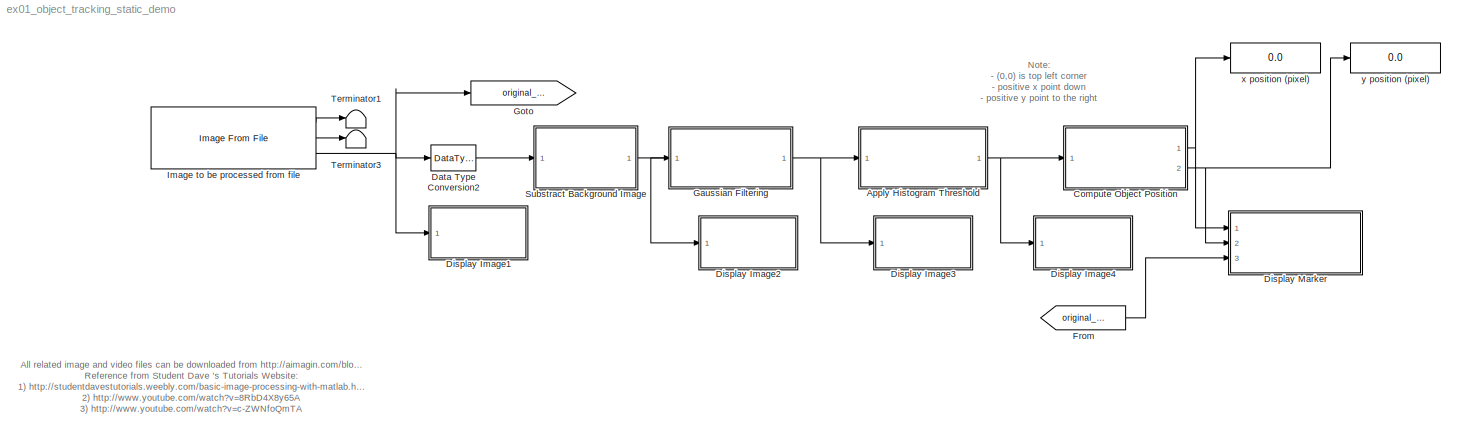
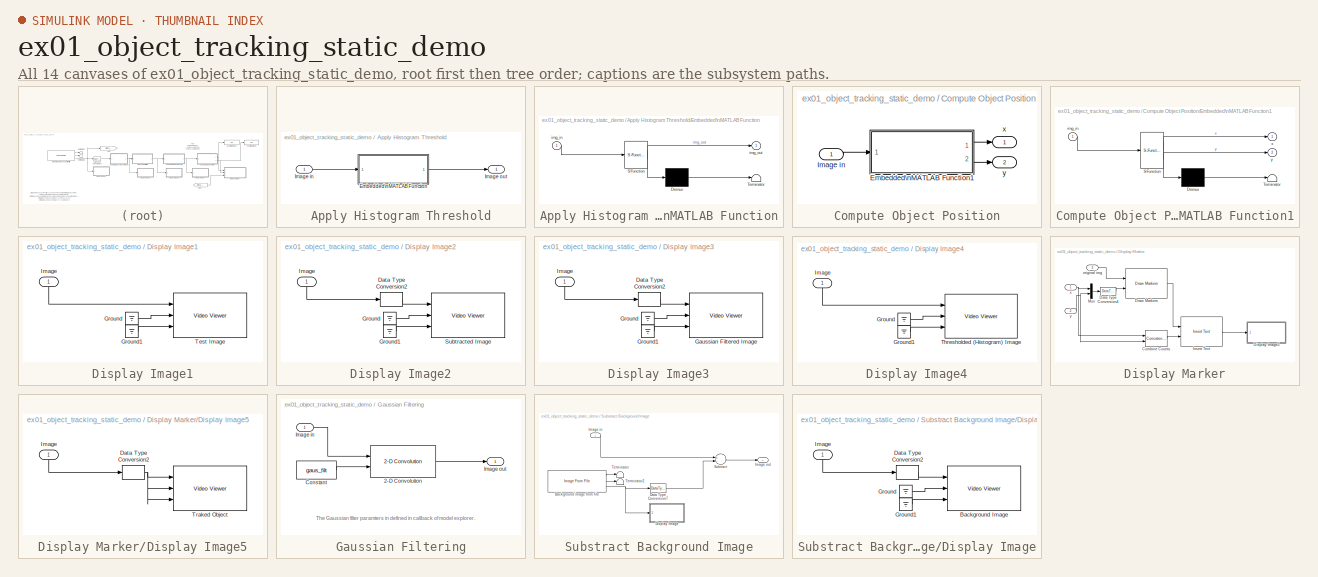
[diagram: thumbnail index - all 14 canvases of the model, root first then tree order]
MODEL ex01_object_tracking_static_demo
KIND model
CONFIG InitFcn = hsize = 20;\nsigma = 10;\ngaus_filt = fspecial('gaussian',hsize , sigma);\n
BLOCK [SubSystem] Apply Histogram Threshold
  FunctionWithSeparateData = off
  MaskHideContents = off
  MinAlgLoopOccurrences = off
  Opaque = off
  Ports = [1, 1]
  PropExecContextOutsideSubsystem = off
  RTWSystemCode = Auto
  RequestExecContextInheritance = off
BLOCK [SubSystem] Apply Histogram Threshold/Embedded\nMATLAB Function
  FunctionWithSeparateData = off
  MaskDescription = Embedded MATLAB block
  MaskDisplay = disp('fcn');
  MaskHideContents = off
  MaskIconFrame = on
  MaskIconOpaque = off
  MaskIconRotate = none
  MaskIconUnits = autoscale
  MaskPortRotate = default
  MaskSelfModifiable = on
  MaskType = Stateflow
  MinAlgLoopOccurrences = off
  Opaque = off
  PermitHierarchicalResolution = ExplicitOnly
  Ports = [1, 1]
  PropExecContextOutsideSubsystem = off
  RTWSystemCode = Auto
  RequestExecContextInheritance = off
BLOCK [Demux] Apply Histogram Threshold/Embedded\nMATLAB Function/ Demux 
  Outputs = 1
  Ports = [1, 1]
BLOCK [S-Function] Apply Histogram Threshold/Embedded\nMATLAB Function/ SFunction 
  EnableBusSupport = on
  FunctionName = sf_sfun
  PortCounts = [1 2]
  Ports = [1, 2]
  Tag = Stateflow S-Function ex01_object_tracking_static_demo 2
BLOCK [Terminator] Apply Histogram Threshold/Embedded\nMATLAB Function/ Terminator 
BLOCK [Inport] Apply Histogram Threshold/Embedded\nMATLAB Function/img_in
  IconDisplay = Port number
  OutDataType = sfix(16)
  OutScaling = 2^0
BLOCK [Outport] Apply Histogram Threshold/Embedded\nMATLAB Function/img_out
  IconDisplay = Port number
  OutDataType = sfix(16)
  OutScaling = 2^0
BLOCK [Inport] Apply Histogram Threshold/Image in
  IconDisplay = Port number
BLOCK [Outport] Apply Histogram Threshold/Image out
  IconDisplay = Port number
BLOCK [SubSystem] Compute Object Position
  FunctionWithSeparateData = off
  MaskHideContents = off
  MinAlgLoopOccurrences = off
  Opaque = off
  Ports = [1, 2]
  PropExecContextOutsideSubsystem = off
  RTWSystemCode = Auto
  RequestExecContextInheritance = off
BLOCK [SubSystem] Compute Object Position/Embedded\nMATLAB Function1
  FunctionWithSeparateData = off
  MaskDescription = Embedded MATLAB block
  MaskDisplay = disp('fcn');
  MaskHideContents = off
  MaskIconFrame = on
  MaskIconOpaque = off
  MaskIconRotate = none
  MaskIconUnits = autoscale
  MaskPortRotate = default
  MaskSelfModifiable = on
  MaskType = Stateflow
  MinAlgLoopOccurrences = off
  Opaque = off
  PermitHierarchicalResolution = ExplicitOnly
  Ports = [1, 2]
  PropExecContextOutsideSubsystem = off
  RTWSystemCode = Auto
  RequestExecContextInheritance = off
BLOCK [Demux] Compute Object Position/Embedded\nMATLAB Function1/ Demux 
  Outputs = 1
  Ports = [1, 1]
BLOCK [S-Function] Compute Object Position/Embedded\nMATLAB Function1/ SFunction 
  EnableBusSupport = on
  FunctionName = sf_sfun
  PortCounts = [1 3]
  Ports = [1, 3]
  Tag = Stateflow S-Function ex01_object_tracking_static_demo 1
BLOCK [Terminator] Compute Object Position/Embedded\nMATLAB Function1/ Terminator 
BLOCK [Inport] Compute Object Position/Embedded\nMATLAB Function1/img_in
  IconDisplay = Port number
  OutDataType = sfix(16)
  OutScaling = 2^0
BLOCK [Outport] Compute Object Position/Embedded\nMATLAB Function1/x
  IconDisplay = Port number
  OutDataType = sfix(16)
  OutScaling = 2^0
BLOCK [Outport] Compute Object Position/Embedded\nMATLAB Function1/y
  IconDisplay = Port number
  Port = 2
BLOCK [Inport] Compute Object Position/Image in
  IconDisplay = Port number
BLOCK [Outport] Compute Object Position/x
  IconDisplay = Port number
BLOCK [Outport] Compute Object Position/y
  IconDisplay = Port number
  Port = 2
BLOCK [DataTypeConversion] Data Type Conversion2
  OutDataType = fixdt(1, 16)
  OutScaling = 2^0
  RndMeth = Floor
  SaturateOnIntegerOverflow = off
BLOCK [SubSystem] Display Image1
  FunctionWithSeparateData = off
  MaskHideContents = off
  MinAlgLoopOccurrences = off
  Opaque = off
  Ports = [1]
  PropExecContextOutsideSubsystem = off
  RTWSystemCode = Auto
  RequestExecContextInheritance = off
BLOCK [Ground] Display Image1/Ground
BLOCK [Ground] Display Image1/Ground1
BLOCK [Inport] Display Image1/Image
  IconDisplay = Port number
BLOCK [Reference] Display Image1/Test Image  REF=vipsnks/Video Viewer
  AxisZoom = on
  DialogControllerArgs = DataTag1
  FigPos = [1056 516 410 398]
  OpenAtMdlStart = on
  Ports = [3]
  SourceBlock = vipsnks/Video Viewer
  SourceType = Video Viewer
  UserData = DataTag0
  UserDataPersistent = on
  colormapValue = gray(256)
  imagePorts = Separate color signals
  inputType = Obsolete7b
  maxInputVal = 255
  minInputVal = 0
  specRange = off
  trueSizedOnce = off
  useColorMap = off
BLOCK [SubSystem] Display Image2
  FunctionWithSeparateData = off
  MaskHideContents = off
  MinAlgLoopOccurrences = off
  Opaque = off
  Ports = [1]
  PropExecContextOutsideSubsystem = off
  RTWSystemCode = Auto
  RequestExecContextInheritance = off
BLOCK [DataTypeConversion] Display Image2/Data Type Conversion2
  OutDataType = fixdt(1, 16)
  OutDataTypeMode = uint8
  OutDataTypeStr = uint8
  OutScaling = 2^0
  RndMeth = Floor
  SaturateOnIntegerOverflow = off
BLOCK [Ground] Display Image2/Ground
BLOCK [Ground] Display Image2/Ground1
BLOCK [Inport] Display Image2/Image
  IconDisplay = Port number
BLOCK [Reference] Display Image2/Subtracted Image  REF=vipsnks/Video Viewer
  AxisZoom = on
  DialogControllerArgs = DataTag3
  FigPos = [618 1033 410 398]
  OpenAtMdlStart = on
  Ports = [3]
  SourceBlock = vipsnks/Video Viewer
  SourceType = Video Viewer
  UserData = DataTag2
  UserDataPersistent = on
  colormapValue = gray(256)
  imagePorts = Separate color signals
  inputType = Obsolete7b
  maxInputVal = 255
  minInputVal = 0
  specRange = off
  trueSizedOnce = off
  useColorMap = off
BLOCK [SubSystem] Display Image3
  FunctionWithSeparateData = off
  MaskHideContents = off
  MinAlgLoopOccurrences = off
  Opaque = off
  Ports = [1]
  PropExecContextOutsideSubsystem = off
  RTWSystemCode = Auto
  RequestExecContextInheritance = off
BLOCK [DataTypeConversion] Display Image3/Data Type Conversion2
  OutDataType = fixdt(1, 16)
  OutDataTypeMode = uint8
  OutDataTypeStr = uint8
  OutScaling = 2^0
  RndMeth = Floor
  SaturateOnIntegerOverflow = off
BLOCK [Reference] Display Image3/Gaussian Filtered Image  REF=vipsnks/Video Viewer
  AxisZoom = on
  DialogControllerArgs = DataTag5
  FigPos = [622 516 410 398]
  OpenAtMdlStart = on
  Ports = [3]
  SourceBlock = vipsnks/Video Viewer
  SourceType = Video Viewer
  UserData = DataTag4
  UserDataPersistent = on
  colormapValue = gray(256)
  imagePorts = Separate color signals
  inputType = Obsolete7b
  maxInputVal = 255
  minInputVal = 0
  specRange = off
  trueSizedOnce = off
  useColorMap = off
BLOCK [Ground] Display Image3/Ground
BLOCK [Ground] Display Image3/Ground1
BLOCK [Inport] Display Image3/Image
  IconDisplay = Port number
BLOCK [SubSystem] Display Image4
  FunctionWithSeparateData = off
  MaskHideContents = off
  MinAlgLoopOccurrences = off
  Opaque = off
  Ports = [1]
  PropExecContextOutsideSubsystem = off
  RTWSystemCode = Auto
  RequestExecContextInheritance = off
BLOCK [Ground] Display Image4/Ground
BLOCK [Ground] Display Image4/Ground1
BLOCK [Inport] Display Image4/Image
  IconDisplay = Port number
BLOCK [Reference] Display Image4/Thresholded (Histogram) Image  REF=vipsnks/Video Viewer
  AxisZoom = on
  DialogControllerArgs = DataTag7
  FigPos = [1492 513 410 398]
  OpenAtMdlStart = on
  Ports = [3]
  SourceBlock = vipsnks/Video Viewer
  SourceType = Video Viewer
  UserData = DataTag6
  UserDataPersistent = on
  colormapValue = gray(256)
  imagePorts = Separate color signals
  inputType = Obsolete7b
  maxInputVal = 255
  minInputVal = 0
  specRange = off
  trueSizedOnce = off
  useColorMap = off
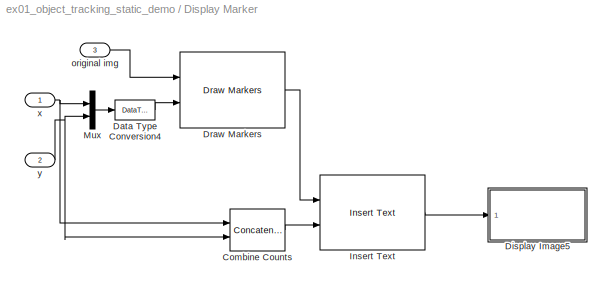
BLOCK [SubSystem] Display Marker
  FunctionWithSeparateData = off
  MaskHideContents = off
  MinAlgLoopOccurrences = off
  Opaque = off
  Ports = [3]
  PropExecContextOutsideSubsystem = off
  RTWSystemCode = Auto
  RequestExecContextInheritance = off
BLOCK [Concatenate] Display Marker/Combine Counts
  ConcatenateDimension = 2
  Mode = Multidimensional array
  Ports = [2, 1]
BLOCK [DataTypeConversion] Display Marker/Data Type Conversion4
  OutDataType = fixdt(1, 16)
  OutDataTypeMode = uint8
  OutDataTypeStr = uint8
  OutScaling = 2^0
  RndMeth = Floor
  SaturateOnIntegerOverflow = off
BLOCK [SubSystem] Display Marker/Display Image5
  FunctionWithSeparateData = off
  MaskHideContents = off
  MinAlgLoopOccurrences = off
  Opaque = off
  Ports = [1]
  PropExecContextOutsideSubsystem = off
  RTWSystemCode = Auto
  RequestExecContextInheritance = off
BLOCK [DataTypeConversion] Display Marker/Display Image5/Data Type Conversion2
  OutDataType = fixdt(1, 16)
  OutDataTypeMode = uint8
  OutDataTypeStr = uint8
  OutScaling = 2^0
  RndMeth = Floor
  SaturateOnIntegerOverflow = off
BLOCK [Inport] Display Marker/Display Image5/Image
  IconDisplay = Port number
BLOCK [Reference] Display Marker/Display Image5/Traked Object  REF=vipsnks/Video Viewer
  AxisZoom = on
  DialogControllerArgs = DataTag9
  FigPos = [1056 1035 410 398]
  OpenAtMdlStart = on
  Ports = [3]
  SourceBlock = vipsnks/Video Viewer
  SourceType = Video Viewer
  UserData = DataTag8
  UserDataPersistent = on
  colormapValue = gray(256)
  imagePorts = Separate color signals
  inputType = Obsolete7b
  maxInputVal = 255
  minInputVal = 0
  specRange = off
  trueSizedOnce = off
  useColorMap = off
BLOCK [Reference] Display Marker/Draw Markers  REF=viptextngfix/Draw Markers
  DialogController = vipDDGCreate
  DialogControllerArgs = DataTag10
  LockScale = off
  Ports = [2, 1]
  SourceBlock = viptextngfix/Draw Markers
  SourceType = Draw Markers
  accumFracLength = 14
  accumMode = Same as product output
  accumWordLength = 32
  antialiasing = off
  color = 1.5
  display = White
  fill = on
  fillClrSource = Specify via dialog
  imagePorts = One multidimensional signal
  inType = Obsolete
  intensity = 200
  memoryFracLength = 14
  memoryMode = Specify word length
  memoryWordLength = 16
  opacity = 0.6
  overflowMode = off
  prodOutputFracLength = 14
  prodOutputMode = Binary point scaling
  prodOutputWordLength = 32
  roundingMode = Floor
  shape = Square
  size = 5
  viewport = Entire image
BLOCK [Reference] Display Marker/Insert Text  REF=viptextngfix/Insert Text
  DialogController = vipDDGCreate
  DialogControllerArgs = DataTag11
  Ports = [2, 1]
  SourceBlock = viptextngfix/Insert Text
  SourceType = Insert Text
  antiAliased = on
  blockFontSize = 12
  dummyVar1 = 0
  dummyVar2 = 0
  dummyVar3 = 0
  dummyVar4 = 0
  fontFace = LucidaSansRegular
  getTextColorFrom = Specify via dialog
  getTextIntensityFrom = Specify via dialog
  getTextLocFrom = Specify via dialog
  getTextOpacityFrom = Specify via dialog
  imagePorts = One multidimensional signal
  inputType = Obsolete
  isInputTransposed = off
  textColor = [0 255 0]
  textIntensity = 0
  textLoc = [20 150]
  textOpacity = 1.0
  theText = 'x: %3.2f, y: %3.2f'
BLOCK [Mux] Display Marker/Mux
  DisplayOption = bar
  Inputs = 2
  Ports = [2, 1]
BLOCK [Inport] Display Marker/original img
  IconDisplay = Port number
  Port = 3
BLOCK [Inport] Display Marker/x
  IconDisplay = Port number
BLOCK [Inport] Display Marker/y
  IconDisplay = Port number
  Port = 2
BLOCK [From] From
  GotoTag = original_img
BLOCK [SubSystem] Gaussian Filtering
  FunctionWithSeparateData = off
  MaskHideContents = off
  MinAlgLoopOccurrences = off
  Opaque = off
  Ports = [1, 1]
  PropExecContextOutsideSubsystem = off
  RTWSystemCode = Auto
  RequestExecContextInheritance = off
BLOCK [Reference] Gaussian Filtering/2-D Convolution  REF=vipfilter/2-D Convolution
  DialogController = vipDDGCreate
  DialogControllerArgs = DataTag12
  LockScale = off
  Ports = [2, 1]
  SourceBlock = vipfilter/2-D Convolution
  SourceType = 2-D Convolution
  accumFracLength = 10
  accumMode = Same as product output
  accumWordLength = 32
  normalize = off
  outSize = Same as input port I1
  outputFracLength = 12
  outputMode = Binary point scaling
  outputWordLength = 32
  overflowMode = off
  prodOutputFracLength = 10
  prodOutputMode = Binary point scaling
  prodOutputWordLength = 32
  roundingMode = Floor
BLOCK [Constant] Gaussian Filtering/Constant
  OutDataType = fixdt(1, 16)
  OutScaling = 2^0
  Value = gaus_filt
  VectorParams1D = off
BLOCK [Inport] Gaussian Filtering/Image in
  IconDisplay = Port number
BLOCK [Outport] Gaussian Filtering/Image out
  IconDisplay = Port number
BLOCK [Goto] Goto
  GotoTag = original_img
  TagVisibility = local
BLOCK [Reference] Image to be processed from file  REF=vipsrcs/Image From File
  DialogController = vipDDGCreate
  DialogControllerArgs = DataTag13
  FileName = <path>
  FractionLength = 15
  FractionLengthMode = User-defined
  FunctionWithSeparateData = off
  ImageDataType = Inherit from input image
  OutPortLabels = R|G|B
  Ports = [0, 3]
  RTWMemSecDataConstants = Inherit from model
  RTWMemSecDataInternal = Inherit from model
  RTWMemSecDataParameters = Inherit from model
  RTWMemSecFuncExecute = Inherit from model
  RTWMemSecFuncInitTerm = Inherit from model
  ShowPortLabels = FromPortIcon
  Signed = on
  SourceBlock = vipsrcs/Image From File
  SourceType = Image From File
  SystemSampleTime = -1
  Tag = vipblks_nd
  Ts = inf
  WordLength = 16
  imagePorts = Separate color signals
  sdImageDataType = uint(8)
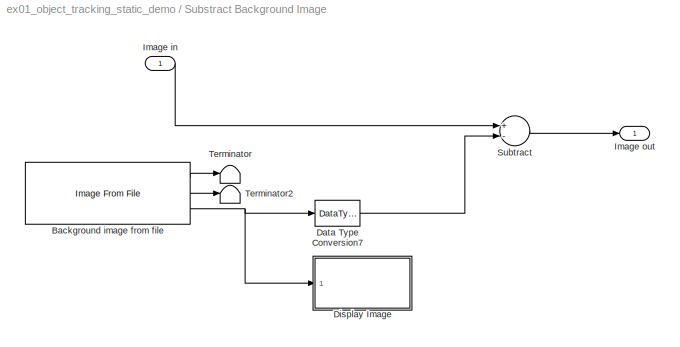
BLOCK [SubSystem] Substract Background Image
  FunctionWithSeparateData = off
  MaskHideContents = off
  MinAlgLoopOccurrences = off
  Opaque = off
  Ports = [1, 1]
  PropExecContextOutsideSubsystem = off
  RTWSystemCode = Auto
  RequestExecContextInheritance = off
BLOCK [Reference] Substract Background Image/Background image from file  REF=vipsrcs/Image From File
  DialogController = vipDDGCreate
  DialogControllerArgs = DataTag14
  FileName = <path>
  FractionLength = 15
  FractionLengthMode = User-defined
  FunctionWithSeparateData = off
  ImageDataType = Inherit from input image
  OutPortLabels = R|G|B
  Ports = [0, 3]
  RTWMemSecDataConstants = Inherit from model
  RTWMemSecDataInternal = Inherit from model
  RTWMemSecDataParameters = Inherit from model
  RTWMemSecFuncExecute = Inherit from model
  RTWMemSecFuncInitTerm = Inherit from model
  ShowPortLabels = FromPortIcon
  Signed = on
  SourceBlock = vipsrcs/Image From File
  SourceType = Image From File
  SystemSampleTime = -1
  Tag = vipblks_nd
  Ts = inf
  WordLength = 16
  imagePorts = Separate color signals
  sdImageDataType = uint(8)
BLOCK [DataTypeConversion] Substract Background Image/Data Type Conversion7
  OutDataType = fixdt(1, 16)
  OutScaling = 2^0
  RndMeth = Floor
  SaturateOnIntegerOverflow = off
BLOCK [SubSystem] Substract Background Image/Display Image
  FunctionWithSeparateData = off
  MaskHideContents = off
  MinAlgLoopOccurrences = off
  Opaque = off
  Ports = [1]
  PropExecContextOutsideSubsystem = off
  RTWSystemCode = Auto
  RequestExecContextInheritance = off
BLOCK [Reference] Substract Background Image/Display Image/Background Image  REF=vipsnks/Video Viewer
  AxisZoom = on
  DialogControllerArgs = DataTag16
  FigPos = [1492 1034 410 398]
  OpenAtMdlStart = on
  Ports = [3]
  SourceBlock = vipsnks/Video Viewer
  SourceType = Video Viewer
  UserData = DataTag15
  UserDataPersistent = on
  colormapValue = gray(256)
  imagePorts = Separate color signals
  inputType = Obsolete7b
  maxInputVal = 255
  minInputVal = 0
  specRange = off
  trueSizedOnce = off
  useColorMap = off
BLOCK [DataTypeConversion] Substract Background Image/Display Image/Data Type Conversion2
  OutDataType = fixdt(1, 16)
  OutDataTypeMode = uint8
  OutDataTypeStr = uint8
  OutScaling = 2^0
  RndMeth = Floor
  SaturateOnIntegerOverflow = off
BLOCK [Ground] Substract Background Image/Display Image/Ground
BLOCK [Ground] Substract Background Image/Display Image/Ground1
BLOCK [Inport] Substract Background Image/Display Image/Image
  IconDisplay = Port number
BLOCK [Inport] Substract Background Image/Image in
  IconDisplay = Port number
BLOCK [Outport] Substract Background Image/Image out
  IconDisplay = Port number
BLOCK [Sum] Substract Background Image/Subtract
  InputSameDT = off
  Inputs = +-
  OutDataType = fixdt(1, 16)
  OutDataTypeMode = Inherit via internal rule
  OutDataTypeStr = Inherit: Inherit via internal rule
  OutScaling = 2^-10
  Ports = [2, 1]
  RndMeth = Nearest
  SaturateOnIntegerOverflow = off
BLOCK [Terminator] Substract Background Image/Terminator
BLOCK [Terminator] Substract Background Image/Terminator2
BLOCK [Terminator] Terminator1
BLOCK [Terminator] Terminator3
BLOCK [Display] x position (pixel)
  Decimation = 1
  Lockdown = off
  Ports = [1]
BLOCK [Display] y position (pixel)
  Decimation = 1
  Lockdown = off
  Ports = [1]
ANNOTATION (root): All related image and video files can be downloaded from http://aimagin.com/blog/basic-image-processing-object-tracking/\nReference from Student Dave 's Tutorials Website: \n1) http://studentdavestutorials.weebly.com/basic-image-processing-with-matlab.html\n2) http://www.youtube.com/watch?v=8RbD4X8y65A\n3) http://www.youtube.com/watch?v=c-ZWNfoQmTA
ANNOTATION (root): Note:\n- (0,0) is top left corner\n- positive x point down\n- positive y point to the right
ANNOTATION Gaussian Filtering: The Gaussian filter paramters in defined in callback of model explorer.
LINE Apply Histogram Threshold/Embedded\nMATLAB Function/ Demux :1 -> Apply Histogram Threshold/Embedded\nMATLAB Function/ Terminator :1
LINE Apply Histogram Threshold/Embedded\nMATLAB Function/ SFunction :1 -> Apply Histogram Threshold/Embedded\nMATLAB Function/ Demux :1
LINE Apply Histogram Threshold/Embedded\nMATLAB Function/ SFunction :2 -> Apply Histogram Threshold/Embedded\nMATLAB Function/img_out:1
LINE Apply Histogram Threshold/Embedded\nMATLAB Function/img_in:1 -> Apply Histogram Threshold/Embedded\nMATLAB Function/ SFunction :1
LINE Apply Histogram Threshold/Embedded\nMATLAB Function:1 -> Apply Histogram Threshold/Image out:1
LINE Apply Histogram Threshold/Image in:1 -> Apply Histogram Threshold/Embedded\nMATLAB Function:1
NET Apply Histogram Threshold:1 -> Compute Object Position:1, Display Image4:1
LINE Compute Object Position/Embedded\nMATLAB Function1/ Demux :1 -> Compute Object Position/Embedded\nMATLAB Function1/ Terminator :1
LINE Compute Object Position/Embedded\nMATLAB Function1/ SFunction :1 -> Compute Object Position/Embedded\nMATLAB Function1/ Demux :1
LINE Compute Object Position/Embedded\nMATLAB Function1/ SFunction :2 -> Compute Object Position/Embedded\nMATLAB Function1/x:1
LINE Compute Object Position/Embedded\nMATLAB Function1/ SFunction :3 -> Compute Object Position/Embedded\nMATLAB Function1/y:1
LINE Compute Object Position/Embedded\nMATLAB Function1/img_in:1 -> Compute Object Position/Embedded\nMATLAB Function1/ SFunction :1
LINE Compute Object Position/Embedded\nMATLAB Function1:1 -> Compute Object Position/x:1
LINE Compute Object Position/Embedded\nMATLAB Function1:2 -> Compute Object Position/y:1
LINE Compute Object Position/Image in:1 -> Compute Object Position/Embedded\nMATLAB Function1:1
NET Compute Object Position:1 -> Display Marker:1, x position (pixel):1
NET Compute Object Position:2 -> Display Marker:2, y position (pixel):1
LINE Data Type Conversion2:1 -> Substract Background Image:1
LINE Display Image1/Ground1:1 -> Display Image1/Test Image:3
LINE Display Image1/Ground:1 -> Display Image1/Test Image:2
LINE Display Image1/Image:1 -> Display Image1/Test Image:1
LINE Display Image2/Data Type Conversion2:1 -> Display Image2/Subtracted Image:1
LINE Display Image2/Ground1:1 -> Display Image2/Subtracted Image:3
LINE Display Image2/Ground:1 -> Display Image2/Subtracted Image:2
LINE Display Image2/Image:1 -> Display Image2/Data Type Conversion2:1
LINE Display Image3/Data Type Conversion2:1 -> Display Image3/Gaussian Filtered Image:1
LINE Display Image3/Ground1:1 -> Display Image3/Gaussian Filtered Image:3
LINE Display Image3/Ground:1 -> Display Image3/Gaussian Filtered Image:2
LINE Display Image3/Image:1 -> Display Image3/Data Type Conversion2:1
LINE Display Image4/Ground1:1 -> Display Image4/Thresholded (Histogram) Image:3
LINE Display Image4/Ground:1 -> Display Image4/Thresholded (Histogram) Image:2
LINE Display Image4/Image:1 -> Display Image4/Thresholded (Histogram) Image:1
LINE Display Marker/Combine Counts:1 -> Display Marker/Insert Text:2
LINE Display Marker/Data Type Conversion4:1 -> Display Marker/Draw Markers:2
NET Display Marker/Display Image5/Data Type Conversion2:1 -> Display Marker/Display Image5/Traked Object:1, Display Marker/Display Image5/Traked Object:2, Display Marker/Display Image5/Traked Object:3
LINE Display Marker/Display Image5/Image:1 -> Display Marker/Display Image5/Data Type Conversion2:1
LINE Display Marker/Draw Markers:1 -> Display Marker/Insert Text:1
LINE Display Marker/Insert Text:1 -> Display Marker/Display Image5:1
LINE Display Marker/Mux:1 -> Display Marker/Data Type Conversion4:1
LINE Display Marker/original img:1 -> Display Marker/Draw Markers:1
NET Display Marker/x:1 -> Display Marker/Combine Counts:1, Display Marker/Mux:1
NET Display Marker/y:1 -> Display Marker/Combine Counts:2, Display Marker/Mux:2
LINE From:1 -> Display Marker:3
LINE Gaussian Filtering/2-D Convolution:1 -> Gaussian Filtering/Image out:1
LINE Gaussian Filtering/Constant:1 -> Gaussian Filtering/2-D Convolution:2
LINE Gaussian Filtering/Image in:1 -> Gaussian Filtering/2-D Convolution:1
NET Gaussian Filtering:1 -> Apply Histogram Threshold:1, Display Image3:1
LINE Image to be processed from file:1 -> Terminator1:1
LINE Image to be processed from file:2 -> Terminator3:1
NET Image to be processed from file:3 -> Data Type Conversion2:1, Display Image1:1, Goto:1
LINE Substract Background Image/Background image from file:1 -> Substract Background Image/Terminator:1
LINE Substract Background Image/Background image from file:2 -> Substract Background Image/Terminator2:1
NET Substract Background Image/Background image from file:3 -> Substract Background Image/Data Type Conversion7:1, Substract Background Image/Display Image:1
LINE Substract Background Image/Data Type Conversion7:1 -> Substract Background Image/Subtract:2
LINE Substract Background Image/Display Image/Data Type Conversion2:1 -> Substract Background Image/Display Image/Background Image:1
LINE Substract Background Image/Display Image/Ground1:1 -> Substract Background Image/Display Image/Background Image:3
LINE Substract Background Image/Display Image/Ground:1 -> Substract Background Image/Display Image/Background Image:2
LINE Substract Background Image/Display Image/Image:1 -> Substract Background Image/Display Image/Data Type Conversion2:1
LINE Substract Background Image/Image in:1 -> Substract Background Image/Subtract:1
LINE Substract Background Image/Subtract:1 -> Substract Background Image/Image out:1
NET Substract Background Image:1 -> Display Image2:1, Gaussian Filtering:1
note: NET lines group one-source signal fan-out (src -> all destinations, sorted); 1:1 wires keep LINE
CHART Compute Object Position/Embedded\nMATLAB Function1 states=1 transitions=1
  STATE_LABEL 'eML_blk_kernel()'
CHART Apply Histogram Threshold/Embedded\nMATLAB Function states=1 transitions=1
  STATE_LABEL 'eML_blk_kernel()'
note: 2 file-system paths scrubbed to <path> (not preserved elsewhere — flat text is the only slx artifact)
